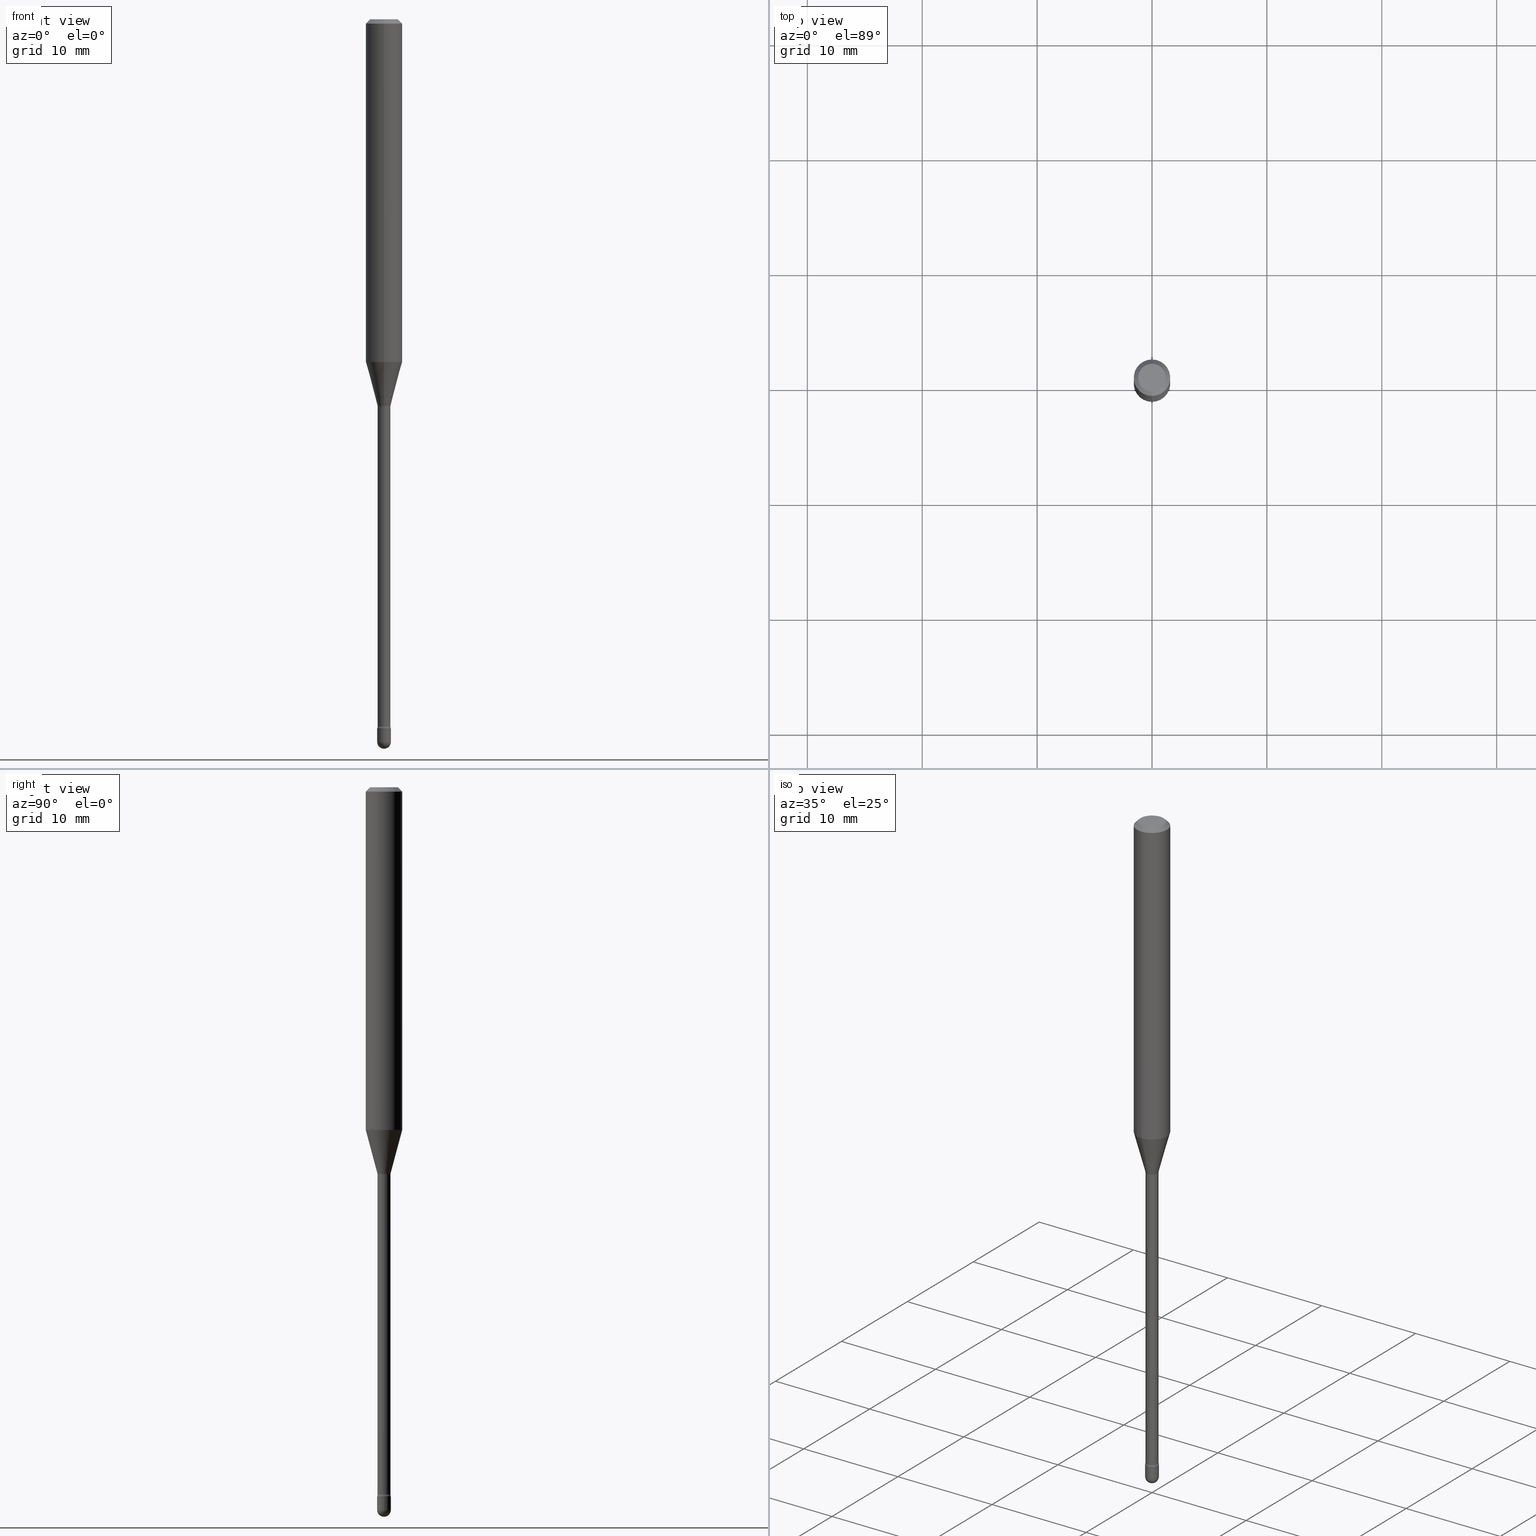
[diagram: canonical four-view strip — front | top / right | iso, engineering-drawing reading convention]
A machine part, canonical four-view strip (front | top / right | iso — engineering-drawing reading convention). The complete STEP part file that produces these views, byte-faithful:
ISO-10303-21;
HEADER;
FILE_DESCRIPTION (( 'STEP AP203' ),
    '1' );
FILE_NAME ('03976.STEP',
    '2024-04-09T21:35:33',
    ( '' ),
    ( '' ),
    'SwSTEP 2.0',
    'SolidWorks 2023',
    '' );
FILE_SCHEMA (( 'CONFIG_CONTROL_DESIGN' ));
ENDSEC;

DATA;
#1 = EDGE_LOOP ( 'NONE', ( #380, #446 ) ) ;
#2 = CARTESIAN_POINT ( 'NONE',  ( -1.169113584055446105E-44, 1.669184350826100908E-30, 4.780733988912460139E-16 ) ) ;
#3 = CONICAL_SURFACE ( 'NONE', #62, 0.02261111260566398690, 0.2617993877991501295 ) ;
#4 = FACE_OUTER_BOUND ( 'NONE', #399, .T. ) ;
#5 = VERTEX_POINT ( 'NONE', #433 ) ;
#6 = EDGE_LOOP ( 'NONE', ( #64, #461, #142, #300 ) ) ;
#7 = DIRECTION ( 'NONE',  ( -6.982962677686265922E-15, -1.000000000000000000, 3.491496509664856263E-15 ) ) ;
#8 = ORIENTED_EDGE ( 'NONE', *, *, #161, .T. ) ;
#9 = ORIENTED_EDGE ( 'NONE', *, *, #457, .F. ) ;
#10 = DATE_AND_TIME ( #68, #309 ) ;
#11 = DIRECTION ( 'NONE',  ( -2.445458212456957199E-29, 3.491496509664856263E-15, 1.000000000000000000 ) ) ;
#12 = ORIENTED_EDGE ( 'NONE', *, *, #89, .T. ) ;
#13 = AXIS2_PLACEMENT_3D ( 'NONE', #31, #244, #513 ) ;
#14 = DIRECTION ( 'NONE',  ( 1.000000000000000000, 0.000000000000000000, 0.000000000000000000 ) ) ;
#15 = VERTEX_POINT ( 'NONE', #210 ) ;
#16 = ORIENTED_EDGE ( 'NONE', *, *, #230, .T. ) ;
#17 = ADVANCED_FACE ( 'NONE', ( #383 ), #359, .T. ) ;
#18 = CARTESIAN_POINT ( 'NONE',  ( 2.636113549670573269E-16, 0.03709999999999167436, -2.422672283192177645 ) ) ;
#19 = CYLINDRICAL_SURFACE ( 'NONE', #317, 0.06250000000000000000 ) ;
#20 = EDGE_LOOP ( 'NONE', ( #373, #186, #183, #110 ) ) ;
#21 = CARTESIAN_POINT ( 'NONE',  ( 3.668187318685455644E-31, -5.237244764497312646E-17, -0.01500000000000008271 ) ) ;
#22 = EDGE_CURVE ( 'NONE', #265, #102, #374, .T. ) ;
#23 = CARTESIAN_POINT ( 'NONE',  ( 3.023754139721027843E-16, 0.02261111260565936906, -1.323092501787273223 ) ) ;
#24 = PERSON_AND_ORGANIZATION ( #70, #400 ) ;
#25 = VERTEX_POINT ( 'NONE', #85 ) ;
#26 = DIRECTION ( 'NONE',  ( -6.982962677686265922E-15, -1.000000000000000000, 0.000000000000000000 ) ) ;
#27 = DIRECTION ( 'NONE',  ( 7.105427357600997914E-15, 1.000000000000000000, 0.000000000000000000 ) ) ;
#28 = APPROVAL_STATUS ( 'not_yet_approved' ) ;
#29 = ADVANCED_FACE ( 'NONE', ( #139 ), #447, .T. ) ;
#30 = DIRECTION ( 'NONE',  ( 1.000000000000000000, -7.105427357601001070E-15, 4.926315694331064967E-29 ) ) ;
#31 = CARTESIAN_POINT ( 'NONE',  ( 6.056203498517492154E-29, -8.646653535645053486E-15, -2.476500000000000590 ) ) ;
#32 = CIRCLE ( 'NONE', #428, 0.01500000000000003240 ) ;
#33 = AXIS2_PLACEMENT_3D ( 'NONE', #209, #122, #390 ) ;
#34 = DIRECTION ( 'NONE',  ( 6.982962677686265922E-15, 1.000000000000000000, -3.483106191921935554E-15 ) ) ;
#35 = SHAPE_DEFINITION_REPRESENTATION ( #451, #182 ) ;
#36 = ORIENTED_EDGE ( 'NONE', *, *, #127, .F. ) ;
#37 = DIRECTION ( 'NONE',  ( -6.982962677686265922E-15, -1.000000000000000000, 3.491496509664854291E-15 ) ) ;
#38 = CALENDAR_DATE ( 2024, 9, 4 ) ;
#39 = DIRECTION ( 'NONE',  ( -2.445468806185136597E-29, 3.491481338843145583E-15, 1.000000000000000000 ) ) ;
#40 = DIRECTION ( 'NONE',  ( -6.982962677686265922E-15, -1.000000000000000000, 0.000000000000000000 ) ) ;
#41 = DIRECTION ( 'NONE',  ( -6.982962677686266711E-15, -1.000000000000000000, 0.000000000000000000 ) ) ;
#42 = DIRECTION ( 'NONE',  ( -6.982962677686265922E-15, -1.000000000000000000, 3.491496509664856658E-15 ) ) ;
#43 = AXIS2_PLACEMENT_3D ( 'NONE', #67, #69, #234 ) ;
#44 = AXIS2_PLACEMENT_3D ( 'NONE', #368, #184, #7 ) ;
#45 = FACE_OUTER_BOUND ( 'NONE', #257, .T. ) ;
#46 = LINE ( 'NONE', #485, #191 ) ;
#47 = CARTESIAN_POINT ( 'NONE',  ( 1.570299446030417360E-16, 0.02209999999999536988, -1.326974787463811145 ) ) ;
#48 = ORIENTED_EDGE ( 'NONE', *, *, #197, .T. ) ;
#49 = EDGE_CURVE ( 'NONE', #512, #265, #173, .T. ) ;
#50 = TOROIDAL_SURFACE ( 'NONE', #149, 0.03710000000000000103, 0.01500000000000002373 ) ;
#51 = AXIS2_PLACEMENT_3D ( 'NONE', #500, #119, #34 ) ;
#52 = AXIS2_PLACEMENT_3D ( 'NONE', #134, #396, #391 ) ;
#53 = ORIENTED_EDGE ( 'NONE', *, *, #59, .T. ) ;
#54 =( LENGTH_UNIT ( ) NAMED_UNIT ( * ) SI_UNIT ( $, .METRE. ) );
#55 = EDGE_CURVE ( 'NONE', #303, #545, #307, .T. ) ;
#56 = DIMENSIONAL_EXPONENTS ( 1.000000000000000000, 0.000000000000000000, 0.000000000000000000, 0.000000000000000000, 0.000000000000000000, 0.000000000000000000, 0.000000000000000000 ) ;
#57 = PERSON_AND_ORGANIZATION ( #70, #400 ) ;
#58 = ORIENTED_EDGE ( 'NONE', *, *, #440, .T. ) ;
#59 = EDGE_CURVE ( 'NONE', #255, #531, #224, .T. ) ;
#60 = ORIENTED_EDGE ( 'NONE', *, *, #22, .F. ) ;
#61 = DIRECTION ( 'NONE',  ( -6.982962677686265133E-15, -1.000000000000000000, 0.000000000000000000 ) ) ;
#62 = AXIS2_PLACEMENT_3D ( 'NONE', #231, #314, #270 ) ;
#63 = ORIENTED_EDGE ( 'NONE', *, *, #55, .F. ) ;
#64 = ORIENTED_EDGE ( 'NONE', *, *, #194, .F. ) ;
#65 = VERTEX_POINT ( 'NONE', #503 ) ;
#66 = CARTESIAN_POINT ( 'NONE',  ( 6.056203498517492154E-29, -8.646653535645053486E-15, -2.476500000000000590 ) ) ;
#67 = CARTESIAN_POINT ( 'NONE',  ( 6.056203498517492154E-29, -8.646653535645053486E-15, -2.476500000000000590 ) ) ;
#68 = CALENDAR_DATE ( 2024, 9, 4 ) ;
#69 = DIRECTION ( 'NONE',  ( -2.445468806185136597E-29, 3.491481338843145583E-15, 1.000000000000000000 ) ) ;
#70 = PERSON ( 'UNSPECIFIED', 'UNSPECIFIED', 'UNSPECIFIED', ('UNSPECIFIED'), ('UNSPECIFIED'), ('UNSPECIFIED') ) ;
#71 = ORIENTED_EDGE ( 'NONE', *, *, #554, .F. ) ;
#72 = ORIENTED_EDGE ( 'NONE', *, *, #251, .F. ) ;
#73 = CARTESIAN_POINT ( 'NONE',  ( -1.169113584055446105E-44, 1.669184350826100908E-30, 4.780733988912460139E-16 ) ) ;
#74 = APPROVAL ( #28, 'UNSPECIFIED' ) ;
#75 = ORIENTED_EDGE ( 'NONE', *, *, #286, .F. ) ;
#76 = DATE_AND_TIME ( #563, #216 ) ;
#77 = ORIENTED_EDGE ( 'NONE', *, *, #363, .T. ) ;
#78 = DIRECTION ( 'NONE',  ( -7.105427357601001070E-15, -1.000000000000000000, 0.000000000000000000 ) ) ;
#79 = DIRECTION ( 'NONE',  ( -2.445458212456957199E-29, 3.491496509664856263E-15, 1.000000000000000000 ) ) ;
#80 = VECTOR ( 'NONE', #542, 39.37007874015749564 ) ;
#81 = AXIS2_PLACEMENT_3D ( 'NONE', #506, #408, #14 ) ;
#82 = VERTEX_POINT ( 'NONE', #274 ) ;
#83 = DIRECTION ( 'NONE',  ( 7.105427357601001859E-15, 1.000000000000000000, 0.000000000000000000 ) ) ;
#84 = DIRECTION ( 'NONE',  ( -6.982962677686265922E-15, -1.000000000000000000, 3.491496509664856263E-15 ) ) ;
#85 = CARTESIAN_POINT ( 'NONE',  ( -1.640996229255679887E-16, -0.02350000000000849673, -2.429000000000000270 ) ) ;
#86 = CARTESIAN_POINT ( 'NONE',  ( 3.235567424335908757E-29, -4.619572851954007400E-15, -1.323092501787273223 ) ) ;
#87 = CARTESIAN_POINT ( 'NONE',  ( -0.02350000000000000699, -8.396753310943903641E-15, -2.476500000000000590 ) ) ;
#88 = AXIS2_PLACEMENT_3D ( 'NONE', #128, #388, #483 ) ;
#89 = EDGE_CURVE ( 'NONE', #65, #489, #326, .T. ) ;
#90 = TOROIDAL_SURFACE ( 'NONE', #511, 0.03710000000000013287, 0.01500000000000002720 ) ;
#91 = CC_DESIGN_APPROVAL ( #311, ( #455 ) ) ;
#92 = DIRECTION ( 'NONE',  ( -2.445468806185136597E-29, 3.491481338843145583E-15, 1.000000000000000000 ) ) ;
#93 = ADVANCED_FACE ( 'NONE', ( #316 ), #291, .T. ) ;
#94 = ORIENTED_EDGE ( 'NONE', *, *, #194, .T. ) ;
#95 = PERSON_AND_ORGANIZATION_ROLE ( 'creator' ) ;
#96 = ORIENTED_EDGE ( 'NONE', *, *, #197, .F. ) ;
#97 = VERTEX_POINT ( 'NONE', #458 ) ;
#98 = CARTESIAN_POINT ( 'NONE',  ( 1.640996229256876491E-16, 0.02349999999999132991, -2.476500000000000590 ) ) ;
#99 = CIRCLE ( 'NONE', #418, 0.01500000000000002373 ) ;
#100 = ORIENTED_EDGE ( 'NONE', *, *, #251, .T. ) ;
#101 = ADVANCED_FACE ( 'NONE', ( #473 ), #431, .T. ) ;
#102 = VERTEX_POINT ( 'NONE', #47 ) ;
#103 = EDGE_LOOP ( 'NONE', ( #261, #342, #168, #262 ) ) ;
#104 = AXIS2_PLACEMENT_3D ( 'NONE', #439, #334, #132 ) ;
#105 = DIRECTION ( 'NONE',  ( -6.982962677686265922E-15, -1.000000000000000000, 3.483106191921935554E-15 ) ) ;
#106 = APPROVAL_ROLE ( '' ) ;
#107 = ORIENTED_EDGE ( 'NONE', *, *, #457, .T. ) ;
#108 = ORIENTED_EDGE ( 'NONE', *, *, #302, .T. ) ;
#109 = PERSON_AND_ORGANIZATION_ROLE ( 'design_supplier' ) ;
#110 = ORIENTED_EDGE ( 'NONE', *, *, #403, .F. ) ;
#111 = CIRCLE ( 'NONE', #409, 0.04749999999999999362 ) ;
#112 = AXIS2_PLACEMENT_3D ( 'NONE', #441, #521, #480 ) ;
#113 = DIRECTION ( 'NONE',  ( -2.445458212456957479E-29, 3.491496509664856658E-15, 1.000000000000000000 ) ) ;
#114 = ADVANCED_FACE ( 'NONE', ( #148 ), #50, .F. ) ;
#115 = COORDINATED_UNIVERSAL_TIME_OFFSET ( 5, 0, .BEHIND. ) ;
#116 = EDGE_LOOP ( 'NONE', ( #370, #533, #223, #280 ) ) ;
#117 = DIRECTION ( 'NONE',  ( -2.445458212456957199E-29, 3.491496509664856263E-15, 1.000000000000000000 ) ) ;
#118 = DIRECTION ( 'NONE',  ( 6.982962677686265922E-15, 1.000000000000000000, 0.000000000000000000 ) ) ;
#119 = DIRECTION ( 'NONE',  ( 2.445458212456957199E-29, -3.491496509664856263E-15, -1.000000000000000000 ) ) ;
#120 = APPROVAL_DATE_TIME ( #76, #74 ) ;
#121 = CYLINDRICAL_SURFACE ( 'NONE', #88, 0.06250000000000000000 ) ;
#122 = DIRECTION ( 'NONE',  ( -2.445458212456957199E-29, 3.491496509664856263E-15, 1.000000000000000000 ) ) ;
#123 = CIRCLE ( 'NONE', #501, 0.02210000000000000159 ) ;
#124 = CIRCLE ( 'NONE', #150, 0.02349999999999995148 ) ;
#125 = CONICAL_SURFACE ( 'NONE', #377, 0.02261111260566398690, 0.2617993877991501295 ) ;
#126 = COORDINATED_UNIVERSAL_TIME_OFFSET ( 5, 0, .BEHIND. ) ;
#127 = EDGE_CURVE ( 'NONE', #15, #255, #212, .T. ) ;
#128 = CARTESIAN_POINT ( 'NONE',  ( -1.169113584055446105E-44, 1.669184350826100908E-30, 4.780733988912460139E-16 ) ) ;
#129 = CARTESIAN_POINT ( 'NONE',  ( 1.640996229256866630E-16, 0.02349999999999152073, -2.429000000000000270 ) ) ;
#130 = DIRECTION ( 'NONE',  ( -6.982962677686265922E-15, -1.000000000000000000, 3.483106191921935554E-15 ) ) ;
#131 = FACE_OUTER_BOUND ( 'NONE', #528, .T. ) ;
#132 = DIRECTION ( 'NONE',  ( 1.000000000000000000, -6.982962677686265922E-15, 4.876176775795935793E-29 ) ) ;
#133 = DIRECTION ( 'NONE',  ( -2.445458212456957199E-29, 3.491496509664856263E-15, 1.000000000000000000 ) ) ;
#134 = CARTESIAN_POINT ( 'NONE',  ( 3.668187318685455644E-31, -5.237244764497312646E-17, -0.01500000000000008271 ) ) ;
#135 = ADVANCED_FACE ( 'NONE', ( #131 ), #121, .T. ) ;
#136 = AXIS2_PLACEMENT_3D ( 'NONE', #220, #218, #559 ) ;
#137 = LOCAL_TIME ( 17, 35, 33.00000000000000000, #126 ) ;
#138 = ORIENTED_EDGE ( 'NONE', *, *, #564, .F. ) ;
#139 = FACE_OUTER_BOUND ( 'NONE', #20, .T. ) ;
#140 = CARTESIAN_POINT ( 'NONE',  ( 2.023475823246615748E-45, -2.889157104078510042E-31, -8.274631145751417483E-17 ) ) ;
#141 = EDGE_CURVE ( 'NONE', #486, #546, #111, .T. ) ;
#142 = ORIENTED_EDGE ( 'NONE', *, *, #564, .T. ) ;
#143 = ORIENTED_EDGE ( 'NONE', *, *, #258, .T. ) ;
#144 =( CONVERSION_BASED_UNIT ( 'INCH', #353 ) LENGTH_UNIT ( ) NAMED_UNIT ( #56 ) );
#145 = CC_DESIGN_PERSON_AND_ORGANIZATION_ASSIGNMENT ( #171, #479, ( #520 ) ) ;
#146 = ORIENTED_EDGE ( 'NONE', *, *, #347, .T. ) ;
#147 = VERTEX_POINT ( 'NONE', #411 ) ;
#148 = FACE_OUTER_BOUND ( 'NONE', #459, .T. ) ;
#149 = AXIS2_PLACEMENT_3D ( 'NONE', #354, #172, #343 ) ;
#150 = AXIS2_PLACEMENT_3D ( 'NONE', #471, #426, #78 ) ;
#151 = ORIENTED_EDGE ( 'NONE', *, *, #235, .F. ) ;
#152 = DESIGN_CONTEXT ( 'detailed design', #413, 'design' ) ;
#153 = CARTESIAN_POINT ( 'NONE',  ( -2.590679153421021709E-16, -0.03710000000000859832, -2.422672283192177645 ) ) ;
#154 = ADVANCED_FACE ( 'NONE', ( #453 ), #3, .T. ) ;
#155 = CIRCLE ( 'NONE', #464, 0.06250000000000000000 ) ;
#156 = APPROVAL_PERSON_ORGANIZATION ( #336, #74, #435 ) ;
#157 = CARTESIAN_POINT ( 'NONE',  ( -1.578925554262807327E-16, -0.02261111260566860820, -1.323092501787273223 ) ) ;
#158 = EDGE_CURVE ( 'NONE', #15, #25, #32, .T. ) ;
#159 = LINE ( 'NONE', #196, #448 ) ;
#160 = LINE ( 'NONE', #259, #389 ) ;
#161 = EDGE_CURVE ( 'NONE', #416, #497, #410, .T. ) ;
#162 = CARTESIAN_POINT ( 'NONE',  ( 3.245061391726702506E-29, -4.633127838843160731E-15, -1.326974787463811145 ) ) ;
#163 = AXIS2_PLACEMENT_3D ( 'NONE', #339, #297, #565 ) ;
#164 = LINE ( 'NONE', #328, #229 ) ;
#165 = ADVANCED_FACE ( 'NONE', ( #214 ), #337, .T. ) ;
#166 = APPROVAL_DATE_TIME ( #421, #311 ) ;
#167 = DIRECTION ( 'NONE',  ( -6.982962677686265922E-15, -1.000000000000000000, 0.000000000000000000 ) ) ;
#168 = ORIENTED_EDGE ( 'NONE', *, *, #403, .T. ) ;
#169 = DIRECTION ( 'NONE',  ( -2.445458212456957199E-29, 3.491496509664856263E-15, 1.000000000000000000 ) ) ;
#170 = CC_DESIGN_PERSON_AND_ORGANIZATION_ASSIGNMENT ( #203, #284, ( #455 ) ) ;
#171 = PERSON_AND_ORGANIZATION ( #70, #400 ) ;
#172 = DIRECTION ( 'NONE',  ( -2.445458212456957199E-29, 3.491496509664856263E-15, 1.000000000000000000 ) ) ;
#173 = CIRCLE ( 'NONE', #180, 0.02261111260566398690 ) ;
#174 = DIRECTION ( 'NONE',  ( -2.445458212456957199E-29, 3.491496509664856263E-15, 1.000000000000000000 ) ) ;
#175 = AXIS2_PLACEMENT_3D ( 'NONE', #325, #422, #26 ) ;
#176 = DIRECTION ( 'NONE',  ( -6.982962677686266711E-15, -1.000000000000000000, 3.491496509664856263E-15 ) ) ;
#177 = EDGE_CURVE ( 'NONE', #545, #443, #292, .T. ) ;
#178 = FACE_OUTER_BOUND ( 'NONE', #116, .T. ) ;
#179 = DIRECTION ( 'NONE',  ( -6.982962677686265922E-15, -1.000000000000000000, 0.000000000000000000 ) ) ;
#180 = AXIS2_PLACEMENT_3D ( 'NONE', #382, #332, #40 ) ;
#181 = CIRCLE ( 'NONE', #260, 0.02350000000000000352 ) ;
#182 = ADVANCED_BREP_SHAPE_REPRESENTATION ( '03976', ( #404, #227, #81 ), #494 ) ;
#183 = ORIENTED_EDGE ( 'NONE', *, *, #258, .F. ) ;
#184 = DIRECTION ( 'NONE',  ( -2.445458212456957199E-29, 3.491496509664856263E-15, 1.000000000000000000 ) ) ;
#185 = DIRECTION ( 'NONE',  ( -6.982962677686265922E-15, -1.000000000000000000, 0.000000000000000000 ) ) ;
#186 = ORIENTED_EDGE ( 'NONE', *, *, #290, .T. ) ;
#187 = CARTESIAN_POINT ( 'NONE',  ( 5.924543831024158448E-29, -8.458751820827276960E-15, -2.422672283192177645 ) ) ;
#188 = EDGE_CURVE ( 'NONE', #497, #416, #155, .T. ) ;
#189 = CARTESIAN_POINT ( 'NONE',  ( 0.000000000000000000, 0.000000000000000000, 0.000000000000000000 ) ) ;
#190 = AXIS2_PLACEMENT_3D ( 'NONE', #66, #335, #245 ) ;
#191 = VECTOR ( 'NONE', #557, 39.37007874015748143 ) ;
#192 = CALENDAR_DATE ( 2024, 9, 4 ) ;
#193 = DIRECTION ( 'NONE',  ( -1.000000000000000000, 6.982962677686265922E-15, -4.883557194083112901E-29 ) ) ;
#194 = EDGE_CURVE ( 'NONE', #486, #416, #285, .T. ) ;
#195 = ORIENTED_EDGE ( 'NONE', *, *, #22, .T. ) ;
#196 = CARTESIAN_POINT ( 'NONE',  ( 1.606616180941141096E-16, 0.02261111260565936906, -1.323092501787273223 ) ) ;
#197 = EDGE_CURVE ( 'NONE', #65, #497, #202, .T. ) ;
#198 = TOROIDAL_SURFACE ( 'NONE', #44, 0.03710000000000013287, 0.01500000000000002720 ) ;
#199 = FACE_OUTER_BOUND ( 'NONE', #424, .T. ) ;
#200 = ADVANCED_FACE ( 'NONE', ( #378 ), #319, .F. ) ;
#201 = EDGE_LOOP ( 'NONE', ( #305, #146 ) ) ;
#202 = LINE ( 'NONE', #283, #247 ) ;
#203 = PERSON_AND_ORGANIZATION ( #70, #400 ) ;
#204 = LINE ( 'NONE', #372, #237 ) ;
#205 = AXIS2_PLACEMENT_3D ( 'NONE', #329, #427, #233 ) ;
#206 = CIRCLE ( 'NONE', #33, 0.02210000000000010914 ) ;
#207 = DIRECTION ( 'NONE',  ( -1.000000000000000000, 6.982962677686265922E-15, -4.883557194083112901E-29 ) ) ;
#208 = ADVANCED_FACE ( 'NONE', ( #199 ), #562, .F. ) ;
#209 = CARTESIAN_POINT ( 'NONE',  ( 5.924543831024158448E-29, -8.458751820827276960E-15, -2.422672283192177645 ) ) ;
#210 = CARTESIAN_POINT ( 'NONE',  ( -1.543234751768080125E-16, -0.02210000000000856765, -2.422672283192177645 ) ) ;
#211 = CYLINDRICAL_SURFACE ( 'NONE', #104, 0.02350000000000000352 ) ;
#212 = CIRCLE ( 'NONE', #445, 0.02210000000000010914 ) ;
#213 = DIRECTION ( 'NONE',  ( -2.445458212456957479E-29, 3.491496509664856658E-15, 1.000000000000000000 ) ) ;
#214 = FACE_OUTER_BOUND ( 'NONE', #6, .T. ) ;
#215 = CIRCLE ( 'NONE', #482, 0.02261111260566398690 ) ;
#216 = LOCAL_TIME ( 17, 35, 33.00000000000000000, #555 ) ;
#217 = ADVANCED_FACE ( 'NONE', ( #275 ), #19, .T. ) ;
#218 = DIRECTION ( 'NONE',  ( 1.000000000000000000, -6.982962677686265922E-15, 4.883557194083112340E-29 ) ) ;
#219 = EDGE_CURVE ( 'NONE', #512, #489, #331, .T. ) ;
#220 = CARTESIAN_POINT ( 'NONE',  ( 6.056203498517491033E-29, -8.646653535645050331E-15, -2.476500000000000146 ) ) ;
#221 = ORIENTED_EDGE ( 'NONE', *, *, #158, .F. ) ;
#222 = APPLICATION_PROTOCOL_DEFINITION ( 'international standard', 'config_control_design', 1994, #413 ) ;
#223 = ORIENTED_EDGE ( 'NONE', *, *, #437, .F. ) ;
#224 = CIRCLE ( 'NONE', #454, 0.01500000000000003240 ) ;
#225 = CIRCLE ( 'NONE', #112, 0.02350000000000000699 ) ;
#226 =( NAMED_UNIT ( * ) SI_UNIT ( $, .STERADIAN. ) SOLID_ANGLE_UNIT ( ) );
#227 = MANIFOLD_SOLID_BREP ( 'Body-Move/Copy2[2]', #344 ) ;
#228 = ORIENTED_EDGE ( 'NONE', *, *, #235, .T. ) ;
#229 = VECTOR ( 'NONE', #248, 39.37007874015748143 ) ;
#230 = EDGE_CURVE ( 'NONE', #147, #303, #279, .T. ) ;
#231 = CARTESIAN_POINT ( 'NONE',  ( 3.235567424335908757E-29, -4.619572851954007400E-15, -1.323092501787273223 ) ) ;
#232 = ORIENTED_EDGE ( 'NONE', *, *, #158, .T. ) ;
#233 = DIRECTION ( 'NONE',  ( -6.982962677686265922E-15, -1.000000000000000000, 4.370956789862821150E-15 ) ) ;
#234 = DIRECTION ( 'NONE',  ( 1.000000000000000000, -6.982962677686227268E-15, 0.000000000000000000 ) ) ;
#235 = EDGE_CURVE ( 'NONE', #97, #147, #124, .T. ) ;
#236 = APPROVAL_DATE_TIME ( #10, #491 ) ;
#237 = VECTOR ( 'NONE', #550, 39.37007874015748143 ) ;
#238 = LINE ( 'NONE', #543, #387 ) ;
#239 = DIRECTION ( 'NONE',  ( -1.000000000000000000, 6.982962677686265922E-15, -4.883557194083111780E-29 ) ) ;
#240 = EDGE_LOOP ( 'NONE', ( #468, #94, #8, #138 ) ) ;
#241 = PERSON_AND_ORGANIZATION ( #70, #400 ) ;
#242 = ORIENTED_EDGE ( 'NONE', *, *, #554, .T. ) ;
#243 = CARTESIAN_POINT ( 'NONE',  ( 6.056203498517491033E-29, -8.646653535645050331E-15, -2.476500000000000146 ) ) ;
#244 = DIRECTION ( 'NONE',  ( -2.445468806185136597E-29, 3.491481338843145583E-15, 1.000000000000000000 ) ) ;
#245 = DIRECTION ( 'NONE',  ( 1.000000000000000000, -6.982962677686227268E-15, 0.000000000000000000 ) ) ;
#246 = CC_DESIGN_PERSON_AND_ORGANIZATION_ASSIGNMENT ( #356, #95, ( #321 ) ) ;
#247 = VECTOR ( 'NONE', #113, 39.37007874015748143 ) ;
#248 = DIRECTION ( 'NONE',  ( -2.445468806185136877E-29, 3.491481338843145188E-15, 1.000000000000000000 ) ) ;
#249 = ORIENTED_EDGE ( 'NONE', *, *, #271, .F. ) ;
#250 = CARTESIAN_POINT ( 'NONE',  ( 0.02350000000000000699, -8.727830476773153796E-15, -2.476500000000000590 ) ) ;
#251 = EDGE_CURVE ( 'NONE', #512, #490, #99, .T. ) ;
#252 = LINE ( 'NONE', #341, #376 ) ;
#253 = CIRCLE ( 'NONE', #438, 0.04749999999999999362 ) ;
#254 = CARTESIAN_POINT ( 'NONE',  ( -4.364351673553912750E-16, -0.06250000000000005551, -0.01499999999999986587 ) ) ;
#255 = VERTEX_POINT ( 'NONE', #553 ) ;
#256 = DATE_TIME_ROLE ( 'creation_date' ) ;
#257 = EDGE_LOOP ( 'NONE', ( #352, #36, #232, #242 ) ) ;
#258 = EDGE_CURVE ( 'NONE', #490, #102, #365, .T. ) ;
#259 = CARTESIAN_POINT ( 'NONE',  ( 4.364351673553919652E-16, 0.06249999999999995143, -0.01500000000000030129 ) ) ;
#260 = AXIS2_PLACEMENT_3D ( 'NONE', #434, #39, #345 ) ;
#261 = ORIENTED_EDGE ( 'NONE', *, *, #290, .F. ) ;
#262 = ORIENTED_EDGE ( 'NONE', *, *, #440, .F. ) ;
#263 = COORDINATED_UNIVERSAL_TIME_OFFSET ( 5, 0, .BEHIND. ) ;
#264 = EDGE_CURVE ( 'NONE', #303, #5, #238, .T. ) ;
#265 = VERTEX_POINT ( 'NONE', #23 ) ;
#266 = CARTESIAN_POINT ( 'NONE',  ( -1.578925554262807327E-16, -0.02261111260566860820, -1.323092501787273223 ) ) ;
#267 = CC_DESIGN_PERSON_AND_ORGANIZATION_ASSIGNMENT ( #241, #109, ( #520 ) ) ;
#268 = DIRECTION ( 'NONE',  ( -6.982962677686266711E-15, -1.000000000000000000, 3.491496509664856263E-15 ) ) ;
#269 = AXIS2_PLACEMENT_3D ( 'NONE', #2, #174, #37 ) ;
#270 = DIRECTION ( 'NONE',  ( -6.982962677686265922E-15, -1.000000000000000000, 0.000000000000000000 ) ) ;
#271 = EDGE_CURVE ( 'NONE', #265, #65, #159, .T. ) ;
#272 = EDGE_LOOP ( 'NONE', ( #96, #12, #77, #452 ) ) ;
#273 = ORIENTED_EDGE ( 'NONE', *, *, #55, .T. ) ;
#274 = CARTESIAN_POINT ( 'NONE',  ( -0.02350000000000000352, -8.396753310943903641E-15, -2.429000000000000270 ) ) ;
#275 = FACE_OUTER_BOUND ( 'NONE', #272, .T. ) ;
#276 = DIRECTION ( 'NONE',  ( 1.000000000000000000, -6.982962677686265922E-15, 4.876176775795935793E-29 ) ) ;
#277 = ADVANCED_FACE ( 'NONE', ( #507 ), #419, .T. ) ;
#278 = CARTESIAN_POINT ( 'NONE',  ( 3.316907271900976096E-16, 0.04749999999999999362, 3.181745950778534465E-17 ) ) ;
#279 = CIRCLE ( 'NONE', #43, 0.02350000000000000699 ) ;
#280 = ORIENTED_EDGE ( 'NONE', *, *, #219, .F. ) ;
#281 = ORIENTED_EDGE ( 'NONE', *, *, #177, .T. ) ;
#282 = APPROVAL_PERSON_ORGANIZATION ( #24, #311, #552 ) ;
#283 = CARTESIAN_POINT ( 'NONE',  ( 4.440892098500625669E-16, 0.06250000000000000000, 2.598548670371925468E-16 ) ) ;
#284 = PERSON_AND_ORGANIZATION_ROLE ( 'classification_officer' ) ;
#285 = LINE ( 'NONE', #467, #475 ) ;
#286 = EDGE_CURVE ( 'NONE', #531, #25, #525, .T. ) ;
#287 = EDGE_LOOP ( 'NONE', ( #249, #108, #315, #505 ) ) ;
#288 = DIRECTION ( 'NONE',  ( -4.851104656540964275E-15, -0.7071067811865500152, -0.7071067811865450192 ) ) ;
#289 = EDGE_LOOP ( 'NONE', ( #151, #107, #63, #324 ) ) ;
#290 = EDGE_CURVE ( 'NONE', #255, #102, #204, .T. ) ;
#291 = CONICAL_SURFACE ( 'NONE', #51, 0.06250000000000000000, 0.7853981633974483900 ) ;
#292 = CIRCLE ( 'NONE', #13, 0.02350000000000000699 ) ;
#293 = CARTESIAN_POINT ( 'NONE',  ( -4.364351673553631225E-16, -0.06250000000000412170, -1.174225147374217793 ) ) ;
#294 = APPROVAL_PERSON_ORGANIZATION ( #57, #491, #106 ) ;
#295 = EDGE_CURVE ( 'NONE', #443, #82, #164, .T. ) ;
#296 = DIRECTION ( 'NONE',  ( 1.000000000000000000, -6.982962677686269866E-15, 0.000000000000000000 ) ) ;
#297 = DIRECTION ( 'NONE',  ( -2.445458212456957199E-29, 3.491496509664856263E-15, 1.000000000000000000 ) ) ;
#298 = PLANE ( 'NONE',  #357 ) ;
#299 = AXIS2_PLACEMENT_3D ( 'NONE', #278, #504, #510 ) ;
#300 = ORIENTED_EDGE ( 'NONE', *, *, #188, .T. ) ;
#301 = DIRECTION ( 'NONE',  ( -2.445458212456957199E-29, 3.491496509664856263E-15, 1.000000000000000000 ) ) ;
#302 = EDGE_CURVE ( 'NONE', #265, #512, #215, .T. ) ;
#303 = VERTEX_POINT ( 'NONE', #250 ) ;
#304 = CARTESIAN_POINT ( 'NONE',  ( 3.840629472727447874E-16, 0.04749999999999999362, -2.485923956665948360E-16 ) ) ;
#305 = ORIENTED_EDGE ( 'NONE', *, *, #313, .T. ) ;
#306 = APPLICATION_PROTOCOL_DEFINITION ( 'international standard', 'config_control_design', 1994, #340 ) ;
#307 = CIRCLE ( 'NONE', #190, 0.02350000000000000699 ) ;
#308 = AXIS2_PLACEMENT_3D ( 'NONE', #162, #79, #167 ) ;
#309 = LOCAL_TIME ( 17, 35, 33.00000000000000000, #263 ) ;
#310 = CARTESIAN_POINT ( 'NONE',  ( 1.669775429036830045E-16, 0.02349999999999153460, -2.429000000000000270 ) ) ;
#311 = APPROVAL ( #375, 'UNSPECIFIED' ) ;
#312 = EDGE_LOOP ( 'NONE', ( #466, #423, #16, #397, #509 ) ) ;
#313 = EDGE_CURVE ( 'NONE', #5, #82, #327, .T. ) ;
#314 = DIRECTION ( 'NONE',  ( -2.445458212456957199E-29, 3.491496509664856263E-15, 1.000000000000000000 ) ) ;
#315 = ORIENTED_EDGE ( 'NONE', *, *, #219, .T. ) ;
#316 = FACE_OUTER_BOUND ( 'NONE', #240, .T. ) ;
#317 = AXIS2_PLACEMENT_3D ( 'NONE', #73, #462, #460 ) ;
#318 = DIRECTION ( 'NONE',  ( -6.982962677686265922E-15, -1.000000000000000000, 3.491496509664854291E-15 ) ) ;
#319 = PLANE ( 'NONE',  #299 ) ;
#320 =( NAMED_UNIT ( * ) PLANE_ANGLE_UNIT ( ) SI_UNIT ( $, .RADIAN. ) );
#321 = PRODUCT_DEFINITION ( 'UNKNOWN', '', #520, #152 ) ;
#322 = DIRECTION ( 'NONE',  ( 1.839019923739599526E-15, 0.2588190451025248473, 0.9659258262890673130 ) ) ;
#323 = DIRECTION ( 'NONE',  ( 4.937700262164548042E-15, 0.7071067811865451302, -0.7071067811865499042 ) ) ;
#324 = ORIENTED_EDGE ( 'NONE', *, *, #230, .F. ) ;
#325 = CARTESIAN_POINT ( 'NONE',  ( 5.940017998057949426E-29, -8.480845021975935496E-15, -2.429000000000000270 ) ) ;
#326 = CIRCLE ( 'NONE', #205, 0.06250000000000000000 ) ;
#327 = CIRCLE ( 'NONE', #535, 0.02350000000000000352 ) ;
#328 = CARTESIAN_POINT ( 'NONE',  ( -0.02350000000000000352, 1.669775429036235687E-16, -1.155949746209903035E-30 ) ) ;
#329 = CARTESIAN_POINT ( 'NONE',  ( 2.871518529919762182E-29, -4.099803003617783492E-15, -1.174225147374218015 ) ) ;
#330 = ORIENTED_EDGE ( 'NONE', *, *, #437, .T. ) ;
#331 = LINE ( 'NONE', #157, #80 ) ;
#332 = DIRECTION ( 'NONE',  ( -2.445458212456957199E-29, 3.491496509664856263E-15, 1.000000000000000000 ) ) ;
#333 = ORIENTED_EDGE ( 'NONE', *, *, #361, .F. ) ;
#334 = DIRECTION ( 'NONE',  ( -2.445468806185136597E-29, 3.491481338843145583E-15, 1.000000000000000000 ) ) ;
#335 = DIRECTION ( 'NONE',  ( -2.445468806185136597E-29, 3.491481338843145583E-15, 1.000000000000000000 ) ) ;
#336 = PERSON_AND_ORGANIZATION ( #70, #400 ) ;
#337 = CONICAL_SURFACE ( 'NONE', #52, 0.06250000000000000000, 0.7853981633974483900 ) ;
#338 = CARTESIAN_POINT ( 'NONE',  ( -1.543234751768340203E-16, -0.02210000000000463330, -1.326974787463811145 ) ) ;
#339 = CARTESIAN_POINT ( 'NONE',  ( 2.871518529919762182E-29, -4.099803003617783492E-15, -1.174225147374218015 ) ) ;
#340 = APPLICATION_CONTEXT ( 'configuration controlled 3d designs of mechanical parts and assemblies' ) ;
#341 = CARTESIAN_POINT ( 'NONE',  ( -4.364351673553916201E-16, -0.06250000000000000000, 6.962919307452995797E-16 ) ) ;
#342 = ORIENTED_EDGE ( 'NONE', *, *, #469, .T. ) ;
#343 = DIRECTION ( 'NONE',  ( -6.982962677686265922E-15, -1.000000000000000000, 3.491496509664856263E-15 ) ) ;
#344 = CLOSED_SHELL ( 'NONE', ( #114, #29, #502, #93, #135, #499, #154, #217, #165, #200, #355, #412, #463, #208 ) ) ;
#345 = DIRECTION ( 'NONE',  ( 1.000000000000000000, -6.982962677686269866E-15, 0.000000000000000000 ) ) ;
#346 = AXIS2_PLACEMENT_3D ( 'NONE', #472, #414, #417 ) ;
#347 = EDGE_CURVE ( 'NONE', #82, #5, #181, .T. ) ;
#348 = LOCAL_TIME ( 17, 35, 33.00000000000000000, #495 ) ;
#349 = ORIENTED_EDGE ( 'NONE', *, *, #286, .T. ) ;
#350 = CYLINDRICAL_SURFACE ( 'NONE', #449, 0.02350000000000000352 ) ;
#351 = ORIENTED_EDGE ( 'NONE', *, *, #302, .F. ) ;
#352 = ORIENTED_EDGE ( 'NONE', *, *, #59, .F. ) ;
#353 = LENGTH_MEASURE_WITH_UNIT ( LENGTH_MEASURE( 0.02539999999999999897 ), #54 );
#354 = CARTESIAN_POINT ( 'NONE',  ( 3.245075449336902148E-29, -4.633107707545245986E-15, -1.326974787463811145 ) ) ;
#355 = ADVANCED_FACE ( 'NONE', ( #523 ), #298, .F. ) ;
#356 = PERSON_AND_ORGANIZATION ( #70, #400 ) ;
#357 = AXIS2_PLACEMENT_3D ( 'NONE', #129, #481, #42 ) ;
#358 = CC_DESIGN_SECURITY_CLASSIFICATION ( #455, ( #520 ) ) ;
#359 = SPHERICAL_SURFACE ( 'NONE', #398, 0.02349999999999995148 ) ;
#360 = DATE_AND_TIME ( #192, #348 ) ;
#361 = EDGE_CURVE ( 'NONE', #443, #147, #225, .T. ) ;
#362 = CARTESIAN_POINT ( 'NONE',  ( 6.056203498517491033E-29, -8.646653535645050331E-15, -2.476500000000000146 ) ) ;
#363 = EDGE_CURVE ( 'NONE', #489, #416, #252, .T. ) ;
#364 = AXIS2_PLACEMENT_3D ( 'NONE', #362, #239, #118 ) ;
#365 = CIRCLE ( 'NONE', #308, 0.02210000000000000159 ) ;
#366 = ORIENTED_EDGE ( 'NONE', *, *, #469, .F. ) ;
#367 = DIRECTION ( 'NONE',  ( -6.982962677686266711E-15, -1.000000000000000000, 0.000000000000000000 ) ) ;
#368 = CARTESIAN_POINT ( 'NONE',  ( 5.924569496155794395E-29, -8.458715066898005273E-15, -2.422672283192177645 ) ) ;
#369 = EDGE_LOOP ( 'NONE', ( #9, #228, #333, #529 ) ) ;
#370 = ORIENTED_EDGE ( 'NONE', *, *, #49, .T. ) ;
#371 = DATE_TIME_ROLE ( 'classification_date' ) ;
#372 = CARTESIAN_POINT ( 'NONE',  ( 1.570299446029824728E-16, 0.02210000000000005363, 4.009113260276525511E-16 ) ) ;
#373 = ORIENTED_EDGE ( 'NONE', *, *, #127, .T. ) ;
#374 = CIRCLE ( 'NONE', #474, 0.01500000000000002373 ) ;
#375 = APPROVAL_STATUS ( 'not_yet_approved' ) ;
#376 = VECTOR ( 'NONE', #213, 39.37007874015748143 ) ;
#377 = AXIS2_PLACEMENT_3D ( 'NONE', #524, #133, #444 ) ;
#378 = FACE_OUTER_BOUND ( 'NONE', #1, .T. ) ;
#379 = ADVANCED_FACE ( 'NONE', ( #477 ), #211, .T. ) ;
#380 = ORIENTED_EDGE ( 'NONE', *, *, #393, .T. ) ;
#381 = DIRECTION ( 'NONE',  ( -2.445458212456957199E-29, 3.491496509664856263E-15, 1.000000000000000000 ) ) ;
#382 = CARTESIAN_POINT ( 'NONE',  ( 3.235567424335908757E-29, -4.619572851954007400E-15, -1.323092501787273223 ) ) ;
#383 = FACE_OUTER_BOUND ( 'NONE', #369, .T. ) ;
#384 = DIRECTION ( 'NONE',  ( -6.982962677686265922E-15, -1.000000000000000000, 0.000000000000000000 ) ) ;
#385 = PRODUCT_RELATED_PRODUCT_CATEGORY ( 'detail', '', ( #534 ) ) ;
#386 = AXIS2_PLACEMENT_3D ( 'NONE', #558, #432, #442 ) ;
#387 = VECTOR ( 'NONE', #514, 39.37007874015748143 ) ;
#388 = DIRECTION ( 'NONE',  ( -2.445458212456957199E-29, 3.491496509664856263E-15, 1.000000000000000000 ) ) ;
#389 = VECTOR ( 'NONE', #323, 39.37007874015748143 ) ;
#390 = DIRECTION ( 'NONE',  ( -6.982962677686266711E-15, -1.000000000000000000, 0.000000000000000000 ) ) ;
#391 = DIRECTION ( 'NONE',  ( 6.982962677686265922E-15, 1.000000000000000000, -3.483106191921935554E-15 ) ) ;
#392 = CARTESIAN_POINT ( 'NONE',  ( -3.773273898774340269E-16, -0.04749999999999999362, 8.309977275156648634E-17 ) ) ;
#393 = EDGE_CURVE ( 'NONE', #546, #486, #253, .T. ) ;
#394 = CARTESIAN_POINT ( 'NONE',  ( 2.023475823246615748E-45, -2.889157104078510042E-31, -8.274631145751417483E-17 ) ) ;
#395 = CYLINDRICAL_SURFACE ( 'NONE', #269, 0.02210000000000005363 ) ;
#396 = DIRECTION ( 'NONE',  ( 2.445458212456957199E-29, -3.491496509664856263E-15, -1.000000000000000000 ) ) ;
#397 = ORIENTED_EDGE ( 'NONE', *, *, #264, .T. ) ;
#398 = AXIS2_PLACEMENT_3D ( 'NONE', #243, #547, #425 ) ;
#399 = EDGE_LOOP ( 'NONE', ( #281, #470, #456, #498, #273 ) ) ;
#400 = ORGANIZATION ( 'UNSPECIFIED', 'UNSPECIFIED', '' ) ;
#401 = CARTESIAN_POINT ( 'NONE',  ( -1.169113584055446105E-44, 1.669184350826100908E-30, 4.780733988912460139E-16 ) ) ;
#402 = PERSON_AND_ORGANIZATION_ROLE ( 'design_owner' ) ;
#403 = EDGE_CURVE ( 'NONE', #15, #490, #46, .T. ) ;
#404 = MANIFOLD_SOLID_BREP ( 'Body-Move/Copy2[1]', #517 ) ;
#405 = UNCERTAINTY_MEASURE_WITH_UNIT (LENGTH_MEASURE( 1.000000000000000082E-05 ), #144, 'distance_accuracy_value', 'NONE');
#406 = DIRECTION ( 'NONE',  ( -2.445468806185136597E-29, 3.491481338843145583E-15, 1.000000000000000000 ) ) ;
#407 = EDGE_LOOP ( 'NONE', ( #71, #75 ) ) ;
#408 = DIRECTION ( 'NONE',  ( 0.000000000000000000, 0.000000000000000000, 1.000000000000000000 ) ) ;
#409 = AXIS2_PLACEMENT_3D ( 'NONE', #394, #11, #268 ) ;
#410 = CIRCLE ( 'NONE', #492, 0.06250000000000000000 ) ;
#411 = CARTESIAN_POINT ( 'NONE',  ( -1.669775429035627771E-16, -0.02350000000000862510, -2.476500000000000590 ) ) ;
#412 = ADVANCED_FACE ( 'NONE', ( #45 ), #90, .F. ) ;
#413 = APPLICATION_CONTEXT ( 'configuration controlled 3d designs of mechanical parts and assemblies' ) ;
#414 = DIRECTION ( 'NONE',  ( -2.445458212456957199E-29, 3.491496509664856263E-15, 1.000000000000000000 ) ) ;
#415 = ORIENTED_EDGE ( 'NONE', *, *, #49, .F. ) ;
#416 = VERTEX_POINT ( 'NONE', #254 ) ;
#417 = DIRECTION ( 'NONE',  ( -6.982962677686265922E-15, -1.000000000000000000, 3.491496509664856263E-15 ) ) ;
#418 = AXIS2_PLACEMENT_3D ( 'NONE', #548, #207, #367 ) ;
#419 = SPHERICAL_SURFACE ( 'NONE', #364, 0.02349999999999995148 ) ;
#420 = CC_DESIGN_DATE_AND_TIME_ASSIGNMENT ( #360, #256, ( #321 ) ) ;
#421 = DATE_AND_TIME ( #549, #137 ) ;
#422 = DIRECTION ( 'NONE',  ( -2.445458212456957199E-29, 3.491496509664856263E-15, 1.000000000000000000 ) ) ;
#423 = ORIENTED_EDGE ( 'NONE', *, *, #361, .T. ) ;
#424 = EDGE_LOOP ( 'NONE', ( #60, #415, #100, #143 ) ) ;
#425 = DIRECTION ( 'NONE',  ( 6.982962677686265922E-15, 1.000000000000000000, 0.000000000000000000 ) ) ;
#426 = DIRECTION ( 'NONE',  ( -1.000000000000000000, 7.105427357601001070E-15, -4.926315508542082329E-29 ) ) ;
#427 = DIRECTION ( 'NONE',  ( -2.445458212456957199E-29, 3.491496509664856263E-15, 1.000000000000000000 ) ) ;
#428 = AXIS2_PLACEMENT_3D ( 'NONE', #153, #193, #61 ) ;
#429 = LOCAL_TIME ( 17, 35, 33.00000000000000000, #115 ) ;
#430 = DIRECTION ( 'NONE',  ( -2.445458212456957199E-29, 3.491496509664856263E-15, 1.000000000000000000 ) ) ;
#431 = PLANE ( 'NONE',  #386 ) ;
#432 = DIRECTION ( 'NONE',  ( -2.438088387897960049E-29, 3.491481338843145188E-15, 1.000000000000000000 ) ) ;
#433 = CARTESIAN_POINT ( 'NONE',  ( 0.02350000000000000352, -8.644907794975628038E-15, -2.429000000000000270 ) ) ;
#434 = CARTESIAN_POINT ( 'NONE',  ( 5.940043730223697314E-29, -8.480808172050001970E-15, -2.429000000000000270 ) ) ;
#435 = APPROVAL_ROLE ( '' ) ;
#436 = CARTESIAN_POINT ( 'NONE',  ( 3.245061391726702506E-29, -4.633127838843160731E-15, -1.326974787463811145 ) ) ;
#437 = EDGE_CURVE ( 'NONE', #489, #65, #518, .T. ) ;
#438 = AXIS2_PLACEMENT_3D ( 'NONE', #140, #381, #176 ) ;
#439 = CARTESIAN_POINT ( 'NONE',  ( 0.000000000000000000, 0.000000000000000000, 0.000000000000000000 ) ) ;
#440 = EDGE_CURVE ( 'NONE', #102, #490, #123, .T. ) ;
#441 = CARTESIAN_POINT ( 'NONE',  ( 6.056203498517492154E-29, -8.646653535645053486E-15, -2.476500000000000590 ) ) ;
#442 = DIRECTION ( 'NONE',  ( 1.000000000000000000, -6.982962677686265922E-15, 4.876176775795935793E-29 ) ) ;
#443 = VERTEX_POINT ( 'NONE', #87 ) ;
#444 = DIRECTION ( 'NONE',  ( -6.982962677686265922E-15, -1.000000000000000000, 0.000000000000000000 ) ) ;
#445 = AXIS2_PLACEMENT_3D ( 'NONE', #187, #476, #41 ) ;
#446 = ORIENTED_EDGE ( 'NONE', *, *, #141, .T. ) ;
#447 = CYLINDRICAL_SURFACE ( 'NONE', #561, 0.02210000000000005363 ) ;
#448 = VECTOR ( 'NONE', #322, 39.37007874015747433 ) ;
#449 = AXIS2_PLACEMENT_3D ( 'NONE', #189, #406, #276 ) ;
#450 = FACE_OUTER_BOUND ( 'NONE', #556, .T. ) ;
#451 = PRODUCT_DEFINITION_SHAPE ( 'NONE', 'NONE',  #321 ) ;
#452 = ORIENTED_EDGE ( 'NONE', *, *, #188, .F. ) ;
#453 = FACE_OUTER_BOUND ( 'NONE', #287, .T. ) ;
#454 = AXIS2_PLACEMENT_3D ( 'NONE', #18, #478, #27 ) ;
#455 = SECURITY_CLASSIFICATION ( '', '', #519 ) ;
#456 = ORIENTED_EDGE ( 'NONE', *, *, #313, .F. ) ;
#457 = EDGE_CURVE ( 'NONE', #97, #545, #551, .T. ) ;
#458 = CARTESIAN_POINT ( 'NONE',  ( 6.114676835852627231E-29, -8.727264387118866723E-15, -2.500000000000000000 ) ) ;
#459 = EDGE_LOOP ( 'NONE', ( #351, #195, #58, #72 ) ) ;
#460 = DIRECTION ( 'NONE',  ( -6.982962677686265922E-15, -1.000000000000000000, 3.491496509664855869E-15 ) ) ;
#461 = ORIENTED_EDGE ( 'NONE', *, *, #393, .F. ) ;
#462 = DIRECTION ( 'NONE',  ( -2.445458212456957199E-29, 3.491496509664856263E-15, 1.000000000000000000 ) ) ;
#463 = ADVANCED_FACE ( 'NONE', ( #516 ), #395, .T. ) ;
#464 = AXIS2_PLACEMENT_3D ( 'NONE', #21, #117, #105 ) ;
#465 = CC_DESIGN_APPROVAL ( #491, ( #321 ) ) ;
#466 = ORIENTED_EDGE ( 'NONE', *, *, #295, .F. ) ;
#467 = CARTESIAN_POINT ( 'NONE',  ( -4.287811248607203282E-16, -0.06250000000000005551, -0.01499999999999986587 ) ) ;
#468 = ORIENTED_EDGE ( 'NONE', *, *, #141, .F. ) ;
#469 = EDGE_CURVE ( 'NONE', #255, #15, #206, .T. ) ;
#470 = ORIENTED_EDGE ( 'NONE', *, *, #295, .T. ) ;
#471 = CARTESIAN_POINT ( 'NONE',  ( 6.056203498517491033E-29, -8.646653535645050331E-15, -2.476500000000000146 ) ) ;
#472 = CARTESIAN_POINT ( 'NONE',  ( 3.245075449336902148E-29, -4.633107707545245986E-15, -1.326974787463811145 ) ) ;
#473 = FACE_OUTER_BOUND ( 'NONE', #201, .T. ) ;
#474 = AXIS2_PLACEMENT_3D ( 'NONE', #530, #30, #83 ) ;
#475 = VECTOR ( 'NONE', #288, 39.37007874015748143 ) ;
#476 = DIRECTION ( 'NONE',  ( -2.445458212456957199E-29, 3.491496509664856263E-15, 1.000000000000000000 ) ) ;
#477 = FACE_OUTER_BOUND ( 'NONE', #312, .T. ) ;
#478 = DIRECTION ( 'NONE',  ( 1.000000000000000000, -7.105427357601001070E-15, 4.926315694331064967E-29 ) ) ;
#479 = PERSON_AND_ORGANIZATION_ROLE ( 'creator' ) ;
#480 = DIRECTION ( 'NONE',  ( 1.000000000000000000, -6.982962677686227268E-15, 0.000000000000000000 ) ) ;
#481 = DIRECTION ( 'NONE',  ( -2.445458212456956358E-29, 3.491496509664856658E-15, 1.000000000000000000 ) ) ;
#482 = AXIS2_PLACEMENT_3D ( 'NONE', #86, #169, #179 ) ;
#483 = DIRECTION ( 'NONE',  ( -6.982962677686265922E-15, -1.000000000000000000, 3.491496509664855869E-15 ) ) ;
#484 = AXIS2_PLACEMENT_3D ( 'NONE', #488, #544, #185 ) ;
#485 = CARTESIAN_POINT ( 'NONE',  ( -1.543234751768668566E-16, -0.02210000000000005363, 5.552354717548395753E-16 ) ) ;
#486 = VERTEX_POINT ( 'NONE', #392 ) ;
#487 = CARTESIAN_POINT ( 'NONE',  ( 5.940043730223697314E-29, -8.480808172050001970E-15, -2.429000000000000270 ) ) ;
#488 = CARTESIAN_POINT ( 'NONE',  ( 5.940017998057949426E-29, -8.480845021975935496E-15, -2.429000000000000270 ) ) ;
#489 = VERTEX_POINT ( 'NONE', #293 ) ;
#490 = VERTEX_POINT ( 'NONE', #338 ) ;
#491 = APPROVAL ( #532, 'UNSPECIFIED' ) ;
#492 = AXIS2_PLACEMENT_3D ( 'NONE', #539, #560, #130 ) ;
#493 = MECHANICAL_CONTEXT ( 'NONE', #340, 'mechanical' ) ;
#494 =( GEOMETRIC_REPRESENTATION_CONTEXT ( 3 ) GLOBAL_UNCERTAINTY_ASSIGNED_CONTEXT ( ( #405 ) ) GLOBAL_UNIT_ASSIGNED_CONTEXT ( ( #144, #320, #226 ) ) REPRESENTATION_CONTEXT ( 'NONE', 'WORKASPACE' ) );
#495 = COORDINATED_UNIVERSAL_TIME_OFFSET ( 5, 0, .BEHIND. ) ;
#496 = ORIENTED_EDGE ( 'NONE', *, *, #363, .F. ) ;
#497 = VERTEX_POINT ( 'NONE', #566 ) ;
#498 = ORIENTED_EDGE ( 'NONE', *, *, #264, .F. ) ;
#499 = ADVANCED_FACE ( 'NONE', ( #178 ), #125, .T. ) ;
#500 = CARTESIAN_POINT ( 'NONE',  ( 3.668187318685455644E-31, -5.237244764497312646E-17, -0.01500000000000008271 ) ) ;
#501 = AXIS2_PLACEMENT_3D ( 'NONE', #436, #430, #384 ) ;
#502 = ADVANCED_FACE ( 'NONE', ( #450 ), #198, .F. ) ;
#503 = CARTESIAN_POINT ( 'NONE',  ( 4.440892098500910152E-16, 0.06249999999999587830, -1.174225147374218237 ) ) ;
#504 = DIRECTION ( 'NONE',  ( 2.445458212456956358E-29, -3.491496509664856658E-15, -1.000000000000000000 ) ) ;
#505 = ORIENTED_EDGE ( 'NONE', *, *, #89, .F. ) ;
#506 = CARTESIAN_POINT ( 'NONE',  ( 0.000000000000000000, 0.000000000000000000, 0.000000000000000000 ) ) ;
#507 = FACE_OUTER_BOUND ( 'NONE', #289, .T. ) ;
#508 = DATE_AND_TIME ( #38, #429 ) ;
#509 = ORIENTED_EDGE ( 'NONE', *, *, #347, .F. ) ;
#510 = DIRECTION ( 'NONE',  ( 6.982962677686265922E-15, 1.000000000000000000, -3.491496509664856658E-15 ) ) ;
#511 = AXIS2_PLACEMENT_3D ( 'NONE', #527, #301, #84 ) ;
#512 = VERTEX_POINT ( 'NONE', #266 ) ;
#513 = DIRECTION ( 'NONE',  ( 1.000000000000000000, -6.982962677686227268E-15, 0.000000000000000000 ) ) ;
#514 = DIRECTION ( 'NONE',  ( -2.445468806185136877E-29, 3.491481338843145188E-15, 1.000000000000000000 ) ) ;
#515 = ADVANCED_FACE ( 'NONE', ( #4 ), #350, .T. ) ;
#516 = FACE_OUTER_BOUND ( 'NONE', #103, .T. ) ;
#517 = CLOSED_SHELL ( 'NONE', ( #515, #17, #101, #277, #379 ) ) ;
#518 = CIRCLE ( 'NONE', #163, 0.06250000000000000000 ) ;
#519 = SECURITY_CLASSIFICATION_LEVEL ( 'unclassified' ) ;
#520 = PRODUCT_DEFINITION_FORMATION_WITH_SPECIFIED_SOURCE ( 'ANY', '', #534, .NOT_KNOWN. ) ;
#521 = DIRECTION ( 'NONE',  ( -2.445468806185136597E-29, 3.491481338843145583E-15, 1.000000000000000000 ) ) ;
#522 = CC_DESIGN_PERSON_AND_ORGANIZATION_ASSIGNMENT ( #536, #402, ( #534 ) ) ;
#523 = FACE_OUTER_BOUND ( 'NONE', #407, .T. ) ;
#524 = CARTESIAN_POINT ( 'NONE',  ( 3.235567424335908757E-29, -4.619572851954007400E-15, -1.323092501787273223 ) ) ;
#525 = CIRCLE ( 'NONE', #175, 0.02350000000000000352 ) ;
#526 = CIRCLE ( 'NONE', #484, 0.02350000000000000352 ) ;
#527 = CARTESIAN_POINT ( 'NONE',  ( 5.924569496155794395E-29, -8.458715066898005273E-15, -2.422672283192177645 ) ) ;
#528 = EDGE_LOOP ( 'NONE', ( #330, #48, #540, #496 ) ) ;
#529 = ORIENTED_EDGE ( 'NONE', *, *, #177, .F. ) ;
#530 = CARTESIAN_POINT ( 'NONE',  ( 2.636113549670296182E-16, 0.03709999999999537279, -1.326974787463811145 ) ) ;
#531 = VERTEX_POINT ( 'NONE', #310 ) ;
#532 = APPROVAL_STATUS ( 'not_yet_approved' ) ;
#533 = ORIENTED_EDGE ( 'NONE', *, *, #271, .T. ) ;
#534 = PRODUCT ( '03976', '03976', '', ( #493 ) ) ;
#535 = AXIS2_PLACEMENT_3D ( 'NONE', #487, #92, #296 ) ;
#536 = PERSON_AND_ORGANIZATION ( #70, #400 ) ;
#537 = CC_DESIGN_APPROVAL ( #74, ( #520 ) ) ;
#538 = CC_DESIGN_DATE_AND_TIME_ASSIGNMENT ( #508, #371, ( #455 ) ) ;
#539 = CARTESIAN_POINT ( 'NONE',  ( 3.668187318685455644E-31, -5.237244764497312646E-17, -0.01500000000000008271 ) ) ;
#540 = ORIENTED_EDGE ( 'NONE', *, *, #161, .F. ) ;
#541 = DIRECTION ( 'NONE',  ( -2.445458212456957199E-29, 3.491496509664856263E-15, 1.000000000000000000 ) ) ;
#542 = DIRECTION ( 'NONE',  ( -1.807323732225328562E-15, -0.2588190451025179639, 0.9659258262890689783 ) ) ;
#543 = CARTESIAN_POINT ( 'NONE',  ( 0.02350000000000000352, -1.640996229256272766E-16, 1.145901542312045115E-30 ) ) ;
#544 = DIRECTION ( 'NONE',  ( -2.445458212456957199E-29, 3.491496509664856263E-15, 1.000000000000000000 ) ) ;
#545 = VERTEX_POINT ( 'NONE', #98 ) ;
#546 = VERTEX_POINT ( 'NONE', #304 ) ;
#547 = DIRECTION ( 'NONE',  ( -1.000000000000000000, 6.982962677686265922E-15, -4.883557194083111780E-29 ) ) ;
#548 = CARTESIAN_POINT ( 'NONE',  ( -2.590679153421280554E-16, -0.03710000000000463621, -1.326974787463811145 ) ) ;
#549 = CALENDAR_DATE ( 2024, 9, 4 ) ;
#550 = DIRECTION ( 'NONE',  ( -2.445458212456957479E-29, 3.491496509664856658E-15, 1.000000000000000000 ) ) ;
#551 = CIRCLE ( 'NONE', #136, 0.02349999999999995148 ) ;
#552 = APPROVAL_ROLE ( '' ) ;
#553 = CARTESIAN_POINT ( 'NONE',  ( 1.620037437533626044E-16, 0.02209999999999164716, -2.422672283192177645 ) ) ;
#554 = EDGE_CURVE ( 'NONE', #25, #531, #526, .T. ) ;
#555 = COORDINATED_UNIVERSAL_TIME_OFFSET ( 5, 0, .BEHIND. ) ;
#556 = EDGE_LOOP ( 'NONE', ( #366, #53, #349, #221 ) ) ;
#557 = DIRECTION ( 'NONE',  ( -2.445458212456957479E-29, 3.491496509664856658E-15, 1.000000000000000000 ) ) ;
#558 = CARTESIAN_POINT ( 'NONE',  ( 5.940043730223697314E-29, -8.480808172050001970E-15, -2.429000000000000270 ) ) ;
#559 = DIRECTION ( 'NONE',  ( 6.982962677686265922E-15, 1.000000000000000000, 0.000000000000000000 ) ) ;
#560 = DIRECTION ( 'NONE',  ( -2.445458212456957199E-29, 3.491496509664856263E-15, 1.000000000000000000 ) ) ;
#561 = AXIS2_PLACEMENT_3D ( 'NONE', #401, #541, #318 ) ;
#562 = TOROIDAL_SURFACE ( 'NONE', #346, 0.03710000000000000103, 0.01500000000000002373 ) ;
#563 = CALENDAR_DATE ( 2024, 9, 4 ) ;
#564 = EDGE_CURVE ( 'NONE', #546, #497, #160, .T. ) ;
#565 = DIRECTION ( 'NONE',  ( -6.982962677686265922E-15, -1.000000000000000000, 4.370956789862821150E-15 ) ) ;
#566 = CARTESIAN_POINT ( 'NONE',  ( 4.440892098500914096E-16, 0.06249999999999995143, -0.01500000000000030129 ) ) ;
ENDSEC;
END-ISO-10303-21;
